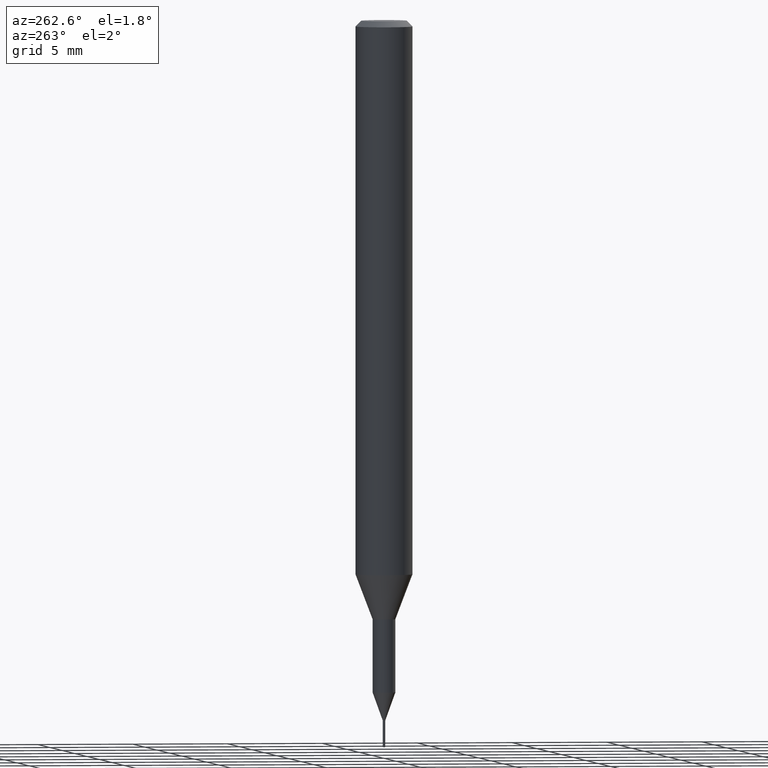
[diagram: clean part render]
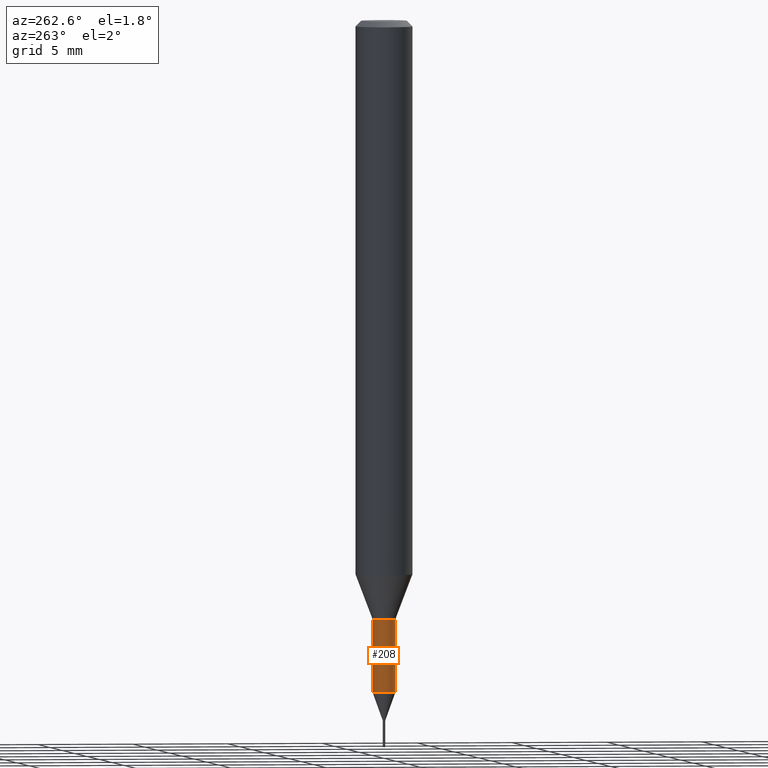
[diagram: same view with one face highlighted and labeled with its STEP entity id]
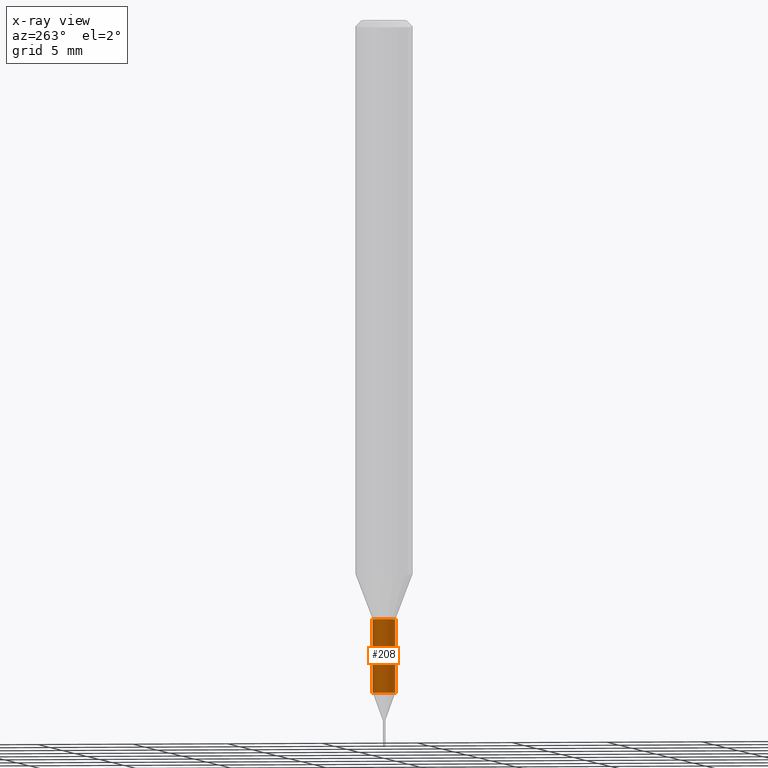
[diagram: x-ray of the same camera — body ghosted, the highlighted face saturated]
A machine part, auxiliary view. The second image highlights one B-rep face of the part: STEP entity #208.
The next image is the same camera in x-ray: the body ghosted, the highlighted face saturated — about 0% of this face is hidden behind the body in this view.
In plain terms, the highlighted cylindrical surface (edge-blend (fillet) strip) has radius 0.5999 mm, axis along (-0, -0, 1).
Its self-contained STEP definition (entity closure, byte-faithful):
#138=EDGE_CURVE('',#182,#168,#316,.T.);
#168=VERTEX_POINT('',#353);
#182=VERTEX_POINT('',#367);
#204=EDGE_CURVE('',#254,#262,#391,.T.);
#208=ADVANCED_FACE('',(#396),#397,.T.);
#222=EDGE_CURVE('',#168,#262,#412,.T.);
#238=EDGE_CURVE('',#254,#182,#430,.T.);
#254=VERTEX_POINT('',#448);
#262=VERTEX_POINT('',#459);
#316=CIRCLE('',#521,0.59995);
#353=CARTESIAN_POINT('',(0.0,0.59995,-31.3));
#367=CARTESIAN_POINT('',(7.34702581975735E-017,-0.59995,-31.3));
#391=CIRCLE('',#616,0.59995);
#396=FACE_OUTER_BOUND('',#621,.T.);
#397=CYLINDRICAL_SURFACE('',#622,0.59995);
#412=LINE('',#640,#641);
#430=LINE('',#663,#664);
#448=CARTESIAN_POINT('',(7.34702581975735E-017,-0.59995,-35.13));
#459=CARTESIAN_POINT('',(0.0,0.59995,-35.13));
#521=AXIS2_PLACEMENT_3D('',#737,#738,#739);
#616=AXIS2_PLACEMENT_3D('',#833,#834,#835);
#621=EDGE_LOOP('',(#843,#844,#845,#846));
#622=AXIS2_PLACEMENT_3D('',#847,#848,#849);
#640=CARTESIAN_POINT('',(-7.34702581975735E-017,0.59995,-33.215));
#641=VECTOR('',#864,1.0);
#663=CARTESIAN_POINT('',(7.34702581975735E-017,-0.59995,-33.215));
#664=VECTOR('',#889,1.0);
#737=CARTESIAN_POINT('',(0.0,0.0,-31.3));
#738=DIRECTION('',(0.0,0.0,-1.0));
#739=DIRECTION('',(0.0,1.0,0.0));
#833=CARTESIAN_POINT('',(0.0,0.0,-35.13));
#834=DIRECTION('',(0.0,0.0,-1.0));
#835=DIRECTION('',(0.0,1.0,0.0));
#843=ORIENTED_EDGE('',*,*,#222,.T.);
#844=ORIENTED_EDGE('',*,*,#204,.F.);
#845=ORIENTED_EDGE('',*,*,#238,.T.);
#846=ORIENTED_EDGE('',*,*,#138,.T.);
#847=CARTESIAN_POINT('',(0.0,0.0,-33.215));
#848=DIRECTION('',(-0.0,-0.0,1.0));
#849=DIRECTION('',(0.0,1.0,0.0));
#864=DIRECTION('',(0.0,0.0,-1.0));
#889=DIRECTION('',(-0.0,-0.0,1.0));